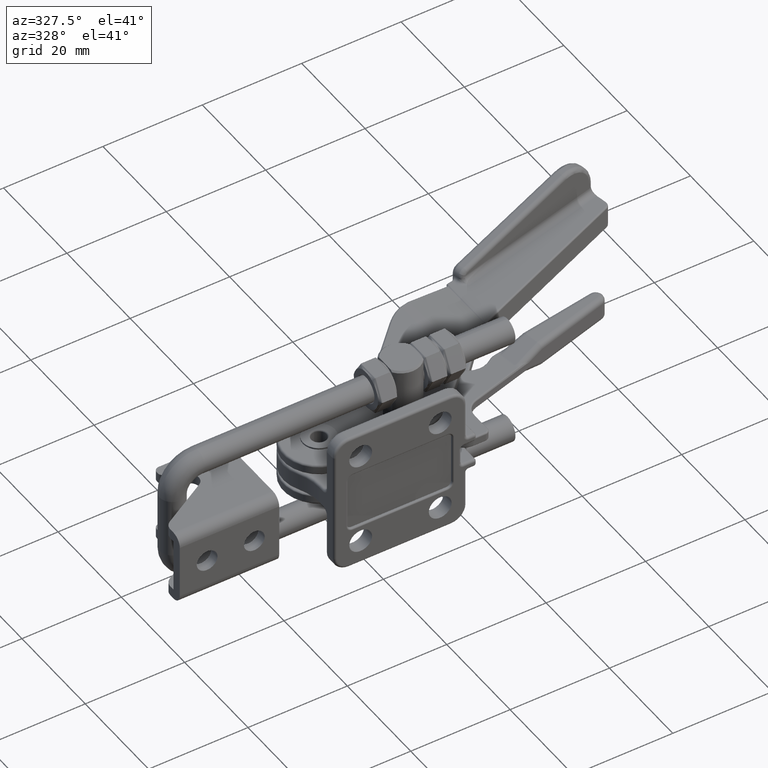
[diagram: clean part render]
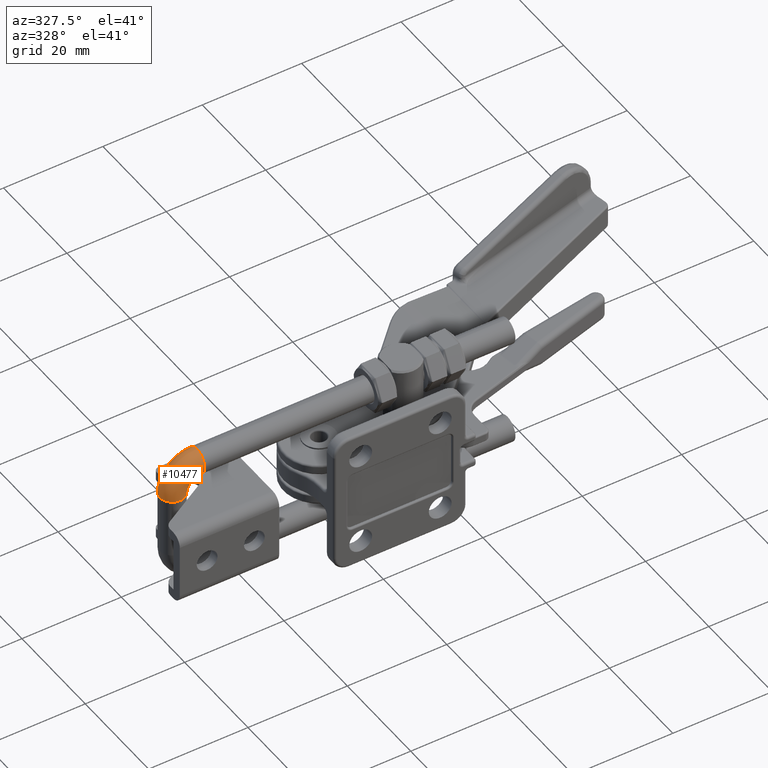
[diagram: same view with one face highlighted and labeled with its STEP entity id]
A machine part, auxiliary view. The second image highlights one B-rep face of the part: STEP entity #10477.
In plain terms, the highlighted toroidal blend (fillet) surface has major radius 5 mm and minor (blend) radius 2.5 mm.
Its self-contained STEP definition (entity closure, byte-faithful):
#864=TOROIDAL_SURFACE('',#11669,5.,2.5);
#2046=FACE_BOUND('',#3402,.T.);
#2662=FACE_OUTER_BOUND('',#3401,.T.);
#3401=EDGE_LOOP('',(#9277));
#3402=EDGE_LOOP('',(#9278));
#4064=CIRCLE('',#11668,2.5);
#4065=CIRCLE('',#11670,2.5);
#4917=VERTEX_POINT('',#27409);
#4918=VERTEX_POINT('',#27412);
#6386=EDGE_CURVE('',#4917,#4917,#4064,.T.);
#6387=EDGE_CURVE('',#4918,#4918,#4065,.T.);
#9277=ORIENTED_EDGE('',*,*,#6386,.F.);
#9278=ORIENTED_EDGE('',*,*,#6387,.T.);
#10477=ADVANCED_FACE('',(#2662,#2046),#864,.T.);
#11668=AXIS2_PLACEMENT_3D('',#27410,#14474,#14475);
#11669=AXIS2_PLACEMENT_3D('',#27411,#14476,#14477);
#11670=AXIS2_PLACEMENT_3D('',#27413,#14478,#14479);
#14474=DIRECTION('center_axis',(1.51930480770662E-16,-1.,0.));
#14475=DIRECTION('ref_axis',(1.,1.51930480770662E-16,0.));
#14476=DIRECTION('center_axis',(0.,0.,1.));
#14477=DIRECTION('ref_axis',(1.,0.,0.));
#14478=DIRECTION('center_axis',(-1.,-2.1316282072803E-16,0.));
#14479=DIRECTION('ref_axis',(2.1316282072803E-16,-1.,0.));
#27409=CARTESIAN_POINT('',(-36.25,6.,3.06161699786838E-16));
#27410=CARTESIAN_POINT('Origin',(-33.75,6.,0.));
#27411=CARTESIAN_POINT('Origin',(-28.75,6.,0.));
#27412=CARTESIAN_POINT('',(-28.75,13.5,3.06161699786838E-16));
#27413=CARTESIAN_POINT('Origin',(-28.75,11.,0.));